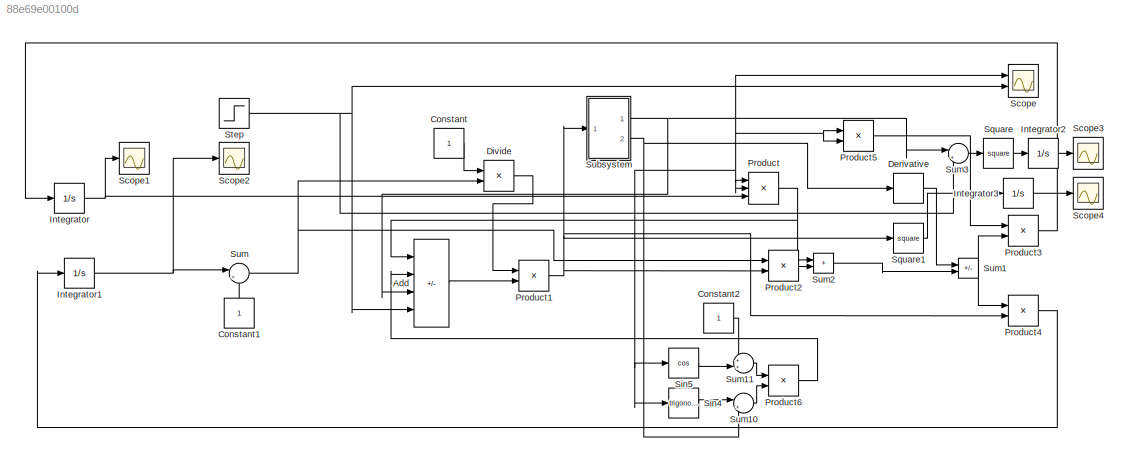
MODEL slx_88e69e00100d
KIND model
CONFIG AbsTol = auto
CONFIG EnableMultiTasking = off
CONFIG FixedStep = auto
CONFIG MaxStep = auto
CONFIG MinStep = auto
CONFIG RelTol = 1e-3
CONFIG SampleTimeConstraint = Unconstrained
CONFIG Solver = VariableStepAuto
CONFIG SolverName = VariableStepAuto
CONFIG StartTime = 0.0
CONFIG StopTime = 100
BLOCK [Sum] Add
  IconShape = rectangular
  Inputs = ---+
  Ports = [4, 1]
BLOCK [Constant] Constant
BLOCK [Constant] Constant1
  NameLocation = right
BLOCK [Constant] Constant2
BLOCK [Derivative] Derivative
BLOCK [Product] Divide
  Inputs = */
  Ports = [2, 1]
BLOCK [Integrator] Integrator
  Ports = [1, 1]
BLOCK [Integrator] Integrator1
  Ports = [1, 1]
BLOCK [Integrator] Integrator2
  Ports = [1, 1]
BLOCK [Integrator] Integrator3
  Ports = [1, 1]
BLOCK [Product] Product
  Inputs = 3
  Ports = [3, 1]
BLOCK [Product] Product1
  Ports = [2, 1]
BLOCK [Product] Product2
  Ports = [2, 1]
BLOCK [Product] Product3
  Ports = [2, 1]
BLOCK [Product] Product4
  Ports = [2, 1]
BLOCK [Product] Product5
  Ports = [2, 1]
BLOCK [Product] Product6
  Ports = [2, 1]
BLOCK [Scope] Scope
  Floating = off
  NumInputPorts = 2
  Ports = [2]
  ScopeSpecificationString = Simulink.scopes.TimeScopeBlockCfg('CurrentConfiguration', extmgr.ConfigurationSet(extmgr.Configuration('Core','General UI',true),extmgr.Configuration('Core','Source UI',true),extmgr.Configuration('Sources','WiredSimulink',true),extmgr.Configuration('Visuals','Time Domain',true,'SerializedDisplays',{struct('MinYLimReal','-0.16109','MaxYLimReal','1.44983','YLabelReal','','MinYLimMag','0.00000','MaxY...<+1338ch>
BLOCK [Scope] Scope1
  Floating = off
  NumInputPorts = 1
  Ports = [1]
  ScopeSpecificationString = Simulink.scopes.TimeScopeBlockCfg('CurrentConfiguration', extmgr.ConfigurationSet(extmgr.Configuration('Core','General UI',true),extmgr.Configuration('Core','Source UI',true),extmgr.Configuration('Sources','WiredSimulink',true,'DataLoggingVariableName','ScopeData1'),extmgr.Configuration('Visuals','Time Domain',true,'SerializedDisplays',{struct('MinYLimReal','-0.06846','MaxYLimReal','0.52245','YLab...<+1369ch>
BLOCK [Scope] Scope2
  Floating = off
  NumInputPorts = 1
  Ports = [1]
  ScopeSpecificationString = Simulink.scopes.TimeScopeBlockCfg('CurrentConfiguration', extmgr.ConfigurationSet(extmgr.Configuration('Core','General UI',true),extmgr.Configuration('Core','Source UI',true),extmgr.Configuration('Sources','WiredSimulink',true,'DataLoggingVariableName','ScopeData2'),extmgr.Configuration('Visuals','Time Domain',true,'SerializedDisplays',{struct('MinYLimReal','-0.19674','MaxYLimReal','0.14906','YLab...<+1370ch>
BLOCK [Scope] Scope3
  Floating = off
  NumInputPorts = 1
  Ports = [1]
  ScopeSpecificationString = Simulink.scopes.TimeScopeBlockCfg('CurrentConfiguration', extmgr.ConfigurationSet(extmgr.Configuration('Core','General UI',true),extmgr.Configuration('Core','Source UI',true),extmgr.Configuration('Sources','WiredSimulink',true,'DataLoggingVariableName','ScopeData1'),extmgr.Configuration('Visuals','Time Domain',true,'SerializedDisplays',{struct('MinYLimReal','-0.13','MaxYLimReal','1.17','YLabelReal...<+1352ch>
BLOCK [Scope] Scope4
  Floating = off
  NumInputPorts = 1
  Ports = [1]
  ScopeSpecificationString = Simulink.scopes.TimeScopeBlockCfg('CurrentConfiguration', extmgr.ConfigurationSet(extmgr.Configuration('Core','General UI',true),extmgr.Configuration('Core','Source UI',true),extmgr.Configuration('Sources','WiredSimulink',true,'DataLoggingVariableName','ScopeData2'),extmgr.Configuration('Visuals','Time Domain',true,'SerializedDisplays',{struct('MinYLimReal','-3.25914','MaxYLimReal','29.33229','YLa...<+1374ch>
BLOCK [Trigonometry] Sin4
  Ports = [1, 1]
BLOCK [Trigonometry] Sin5
  Operator = cos
  Ports = [1, 1]
BLOCK [Math] Square
  Operator = square
  Ports = [1, 1]
BLOCK [Math] Square1
  Operator = square
  Ports = [1, 1]
BLOCK [Step] Step
  SampleTime = 0
  Time = 0
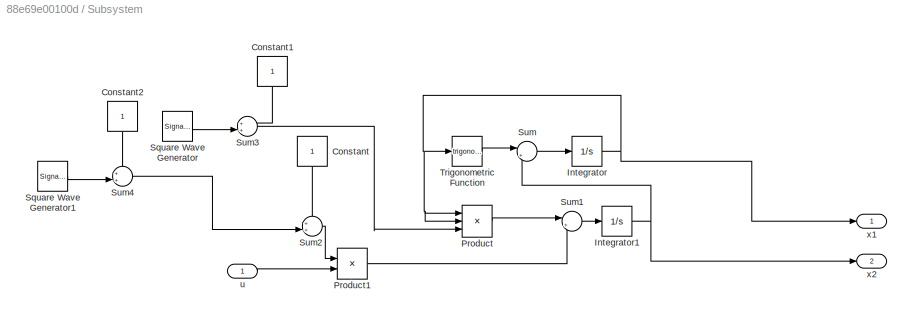
BLOCK [SubSystem] Subsystem
  Ports = [1, 2]
  RequestExecContextInheritance = off
BLOCK [Constant] Subsystem/Constant
  NameLocation = left
BLOCK [Constant] Subsystem/Constant1
  NameLocation = left
BLOCK [Constant] Subsystem/Constant2
  NameLocation = left
BLOCK [Integrator] Subsystem/Integrator
  Ports = [1, 1]
BLOCK [Integrator] Subsystem/Integrator1
  Ports = [1, 1]
BLOCK [Product] Subsystem/Product
  Inputs = 3
  Ports = [3, 1]
BLOCK [Product] Subsystem/Product1
  Ports = [2, 1]
BLOCK [SignalGenerator] Subsystem/Square Wave Generator
  Amplitude = 0.2
  Frequency = 0.05
  Ports = [0, 1]
  WaveForm = square
BLOCK [SignalGenerator] Subsystem/Square Wave Generator1
  Amplitude = 0.2
  Frequency = 0.05
  Ports = [0, 1]
  WaveForm = square
BLOCK [Sum] Subsystem/Sum
  Inputs = |++
  Ports = [2, 1]
BLOCK [Sum] Subsystem/Sum1
  Inputs = |++
  Ports = [2, 1]
BLOCK [Sum] Subsystem/Sum2
  Inputs = ++|
  Ports = [2, 1]
BLOCK [Sum] Subsystem/Sum3
  Inputs = ++|
  Ports = [2, 1]
BLOCK [Sum] Subsystem/Sum4
  Inputs = ++|
  Ports = [2, 1]
BLOCK [Trigonometry] Subsystem/Trigonometric Function
  Ports = [1, 1]
BLOCK [Inport] Subsystem/u
BLOCK [Outport] Subsystem/x1
BLOCK [Outport] Subsystem/x2
  Port = 2
BLOCK [Sum] Sum
  Inputs = |++
  Ports = [2, 1]
BLOCK [Sum] Sum1
  IconShape = rectangular
  Inputs = +-
  Ports = [2, 1]
BLOCK [Sum] Sum10
  Inputs = |++
  Ports = [2, 1]
BLOCK [Sum] Sum11
  Inputs = ++|
  Ports = [2, 1]
BLOCK [Sum] Sum2
  IconShape = rectangular
  Ports = [2, 1]
BLOCK [Sum] Sum3
  Inputs = |+-
  Ports = [2, 1]
LINE Add:1 -> Product1:2
LINE Constant1:1 -> Sum:2
LINE Constant2:1 -> Sum11:1
LINE Constant:1 -> Divide:1
LINE Derivative:1 -> Sum1:1
LINE Divide:1 -> Product1:1
NET Integrator1:1 -> Scope2:1, Sum:1
LINE Integrator2:1 -> Scope3:1
LINE Integrator3:1 -> Scope4:1
NET Integrator:1 -> Product:3, Scope1:1
NET Product1:1 -> Product2:2, Product4:2, Square1:1, Subsystem:1
LINE Product2:1 -> Sum2:2
LINE Product3:1 -> Integrator:1
LINE Product4:1 -> Integrator1:1
LINE Product5:1 -> Product3:1
LINE Product6:1 -> Add:2
NET Product:1 -> Add:1, Sum2:1
LINE Sin4:1 -> Sum10:1
LINE Sin5:1 -> Sum11:2
LINE Square1:1 -> Integrator3:1
LINE Square:1 -> Integrator2:1
NET Step:1 -> Add:4, Scope:2, Sum3:2
LINE Subsystem/Constant1:1 -> Subsystem/Sum3:1
LINE Subsystem/Constant2:1 -> Subsystem/Sum4:1
LINE Subsystem/Constant:1 -> Subsystem/Sum2:1
NET Subsystem/Integrator1:1 -> Subsystem/Sum:2, Subsystem/x2:1
NET Subsystem/Integrator:1 -> Subsystem/Product:1, Subsystem/Product:2, Subsystem/Trigonometric Function:1, Subsystem/x1:1
LINE Subsystem/Product1:1 -> Subsystem/Sum1:2
LINE Subsystem/Product:1 -> Subsystem/Sum1:1
LINE Subsystem/Square Wave Generator1:1 -> Subsystem/Sum4:2
LINE Subsystem/Square Wave Generator:1 -> Subsystem/Sum3:2
LINE Subsystem/Sum1:1 -> Subsystem/Integrator1:1
LINE Subsystem/Sum2:1 -> Subsystem/Product1:1
LINE Subsystem/Sum3:1 -> Subsystem/Product:3
LINE Subsystem/Sum4:1 -> Subsystem/Sum2:2
LINE Subsystem/Sum:1 -> Subsystem/Integrator:1
LINE Subsystem/Trigonometric Function:1 -> Subsystem/Sum:1
LINE Subsystem/u:1 -> Subsystem/Product1:2
NET Subsystem:1 -> Add:3, Product5:1, Product5:2, Product:1, Product:2, Scope:1, Sin4:1, Sin5:1, Sum3:1
NET Subsystem:2 -> Derivative:1, Sum10:2
LINE Sum10:1 -> Product6:2
LINE Sum11:1 -> Product6:1
NET Sum1:1 -> Product3:2, Product4:1
LINE Sum2:1 -> Sum1:2
LINE Sum3:1 -> Square:1
NET Sum:1 -> Divide:2, Product2:1
note: NET lines group one-source signal fan-out (src -> all destinations, sorted); 1:1 wires keep LINE
